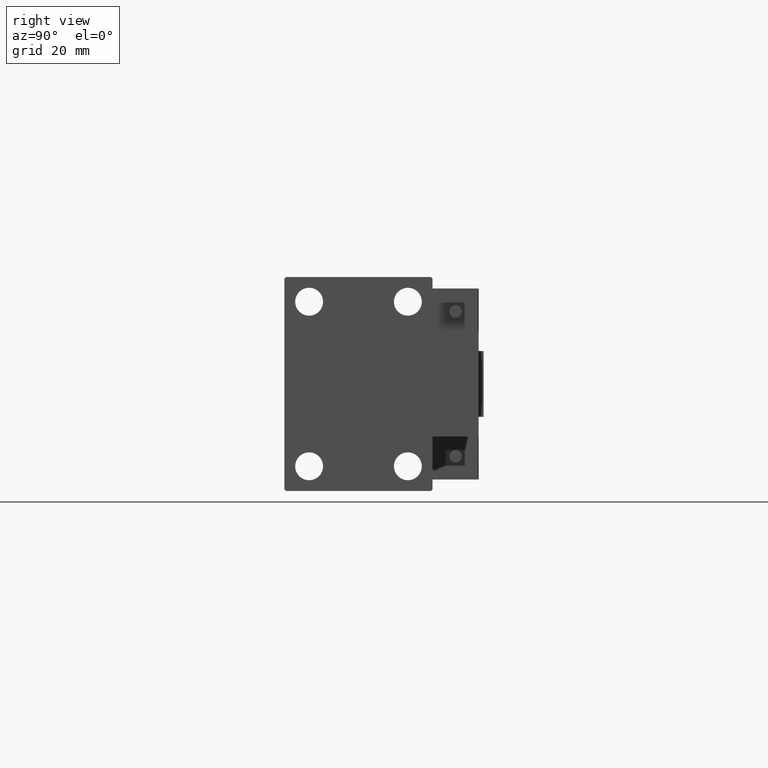
[diagram: clean part render]
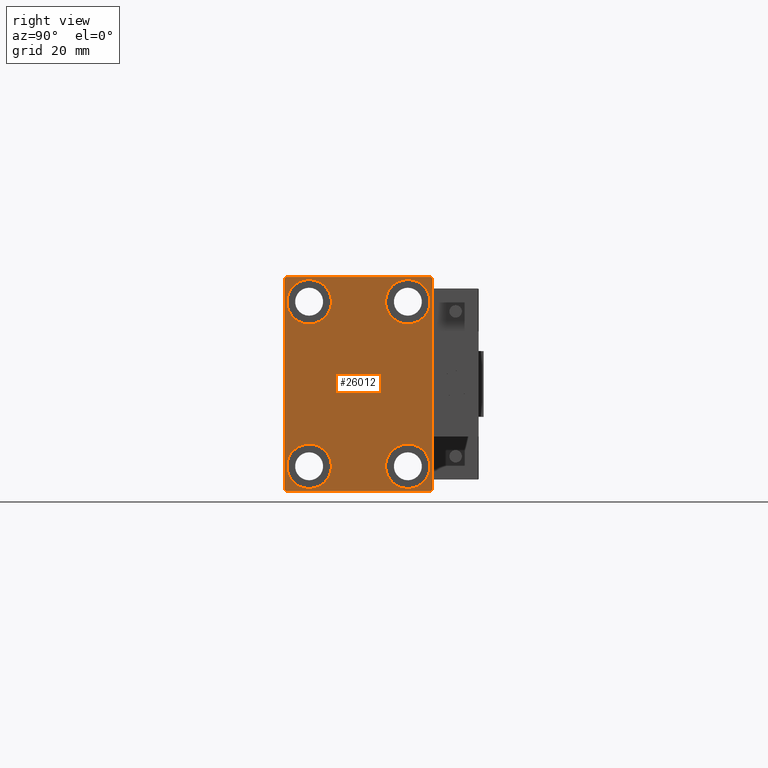
[diagram: same view with one face highlighted and labeled with its STEP entity id]
A machine part, right view. The second image highlights one B-rep face of the part: STEP entity #26012.
In plain terms, the highlighted planar face has unit normal (1, 0, 0).
Its self-contained STEP definition (entity closure, byte-faithful):
#329 = DIRECTION ( 'NONE',  ( 1.000000000000000000, 0.000000000000000000, 0.000000000000000000 ) ) ;
#360 = VERTEX_POINT ( 'NONE', #28802 ) ;
#598 = CIRCLE ( 'NONE', #7110, 6.749999999999999112 ) ;
#1582 = ORIENTED_EDGE ( 'NONE', *, *, #3130, .T. ) ;
#2376 = EDGE_CURVE ( 'NONE', #8822, #30088, #9449, .T. ) ;
#2687 = EDGE_CURVE ( 'NONE', #22417, #29400, #13706, .T. ) ;
#2753 = ORIENTED_EDGE ( 'NONE', *, *, #46295, .T. ) ;
#3130 = EDGE_CURVE ( 'NONE', #29400, #28059, #41360, .T. ) ;
#4028 = EDGE_LOOP ( 'NONE', ( #40129, #45838, #28886, #1582, #39316, #50199, #20679, #45593 ) ) ;
#4234 = LINE ( 'NONE', #24595, #7914 ) ;
#4742 = CARTESIAN_POINT ( 'NONE',  ( 130.0000000000000000, 14.99999999999999645, -31.75000000000000000 ) ) ;
#4786 = CARTESIAN_POINT ( 'NONE',  ( 130.0000000000000000, -14.99999999999999645, 25.00000000000000000 ) ) ;
#5199 = VERTEX_POINT ( 'NONE', #29589 ) ;
#5577 = ORIENTED_EDGE ( 'NONE', *, *, #33733, .T. ) ;
#5882 = DIRECTION ( 'NONE',  ( 0.000000000000000000, -0.7071067811865474617, -0.7071067811865474617 ) ) ;
#6208 = CIRCLE ( 'NONE', #34640, 6.749999999999999112 ) ;
#6561 = CARTESIAN_POINT ( 'NONE',  ( 130.0000000000000000, -22.00000000000003197, -32.50000000000000711 ) ) ;
#6781 = DIRECTION ( 'NONE',  ( 0.000000000000000000, 1.000000000000000000, 0.000000000000000000 ) ) ;
#6820 = EDGE_CURVE ( 'NONE', #16386, #23107, #44342, .T. ) ;
#7110 = AXIS2_PLACEMENT_3D ( 'NONE', #23820, #34753, #39328 ) ;
#7729 = CARTESIAN_POINT ( 'NONE',  ( 130.0000000000000000, 0.000000000000000000, 0.000000000000000000 ) ) ;
#7788 = DIRECTION ( 'NONE',  ( -1.000000000000000000, -0.000000000000000000, -0.000000000000000000 ) ) ;
#7914 = VECTOR ( 'NONE', #12893, 1000.000000000000114 ) ;
#8034 = DIRECTION ( 'NONE',  ( -1.000000000000000000, -0.000000000000000000, -0.000000000000000000 ) ) ;
#8230 = ORIENTED_EDGE ( 'NONE', *, *, #33739, .T. ) ;
#8243 = DIRECTION ( 'NONE',  ( 0.000000000000000000, 0.000000000000000000, -1.000000000000000000 ) ) ;
#8442 = VERTEX_POINT ( 'NONE', #42618 ) ;
#8822 = VERTEX_POINT ( 'NONE', #24671 ) ;
#9080 = ORIENTED_EDGE ( 'NONE', *, *, #12290, .T. ) ;
#9136 = EDGE_CURVE ( 'NONE', #23107, #16386, #43111, .T. ) ;
#9449 = LINE ( 'NONE', #36899, #50124 ) ;
#9571 = CIRCLE ( 'NONE', #18473, 6.749999999999999112 ) ;
#9798 = VERTEX_POINT ( 'NONE', #38595 ) ;
#9902 = CARTESIAN_POINT ( 'NONE',  ( 130.0000000000000000, -22.50000000000000711, 32.49999999999999289 ) ) ;
#10363 = LINE ( 'NONE', #38057, #22147 ) ;
#11327 = CIRCLE ( 'NONE', #17033, 6.749999999999999112 ) ;
#11894 = EDGE_CURVE ( 'NONE', #30088, #41370, #32950, .T. ) ;
#12121 = DIRECTION ( 'NONE',  ( 0.000000000000000000, 0.000000000000000000, 1.000000000000000000 ) ) ;
#12156 = CARTESIAN_POINT ( 'NONE',  ( 130.0000000000000000, -15.00000000000000355, -25.00000000000000000 ) ) ;
#12290 = EDGE_CURVE ( 'NONE', #29885, #8442, #42783, .T. ) ;
#12893 = DIRECTION ( 'NONE',  ( -0.000000000000000000, 0.7071067811865474617, 0.7071067811865474617 ) ) ;
#13609 = EDGE_CURVE ( 'NONE', #41370, #22417, #40471, .T. ) ;
#13706 = LINE ( 'NONE', #9902, #15571 ) ;
#13846 = EDGE_CURVE ( 'NONE', #360, #24870, #4234, .T. ) ;
#14910 = CARTESIAN_POINT ( 'NONE',  ( 130.0000000000000000, -21.99999999999999289, 32.49999999999999289 ) ) ;
#15571 = VECTOR ( 'NONE', #40414, 1000.000000000000000 ) ;
#15601 = EDGE_CURVE ( 'NONE', #48264, #24615, #6208, .T. ) ;
#15615 = FACE_BOUND ( 'NONE', #22099, .T. ) ;
#16386 = VERTEX_POINT ( 'NONE', #37639 ) ;
#16749 = DIRECTION ( 'NONE',  ( -1.000000000000000000, -0.000000000000000000, -0.000000000000000000 ) ) ;
#17033 = AXIS2_PLACEMENT_3D ( 'NONE', #12156, #20288, #24108 ) ;
#17667 = DIRECTION ( 'NONE',  ( -1.000000000000000000, -0.000000000000000000, -0.000000000000000000 ) ) ;
#17973 = ORIENTED_EDGE ( 'NONE', *, *, #6820, .T. ) ;
#18473 = AXIS2_PLACEMENT_3D ( 'NONE', #23563, #7788, #12121 ) ;
#18669 = DIRECTION ( 'NONE',  ( -1.000000000000000000, -0.000000000000000000, -0.000000000000000000 ) ) ;
#19067 = CARTESIAN_POINT ( 'NONE',  ( 130.0000000000000000, -22.50000000000000711, 31.99999999999999289 ) ) ;
#19590 = AXIS2_PLACEMENT_3D ( 'NONE', #34680, #18669, #27039 ) ;
#19686 = FACE_BOUND ( 'NONE', #45780, .T. ) ;
#20288 = DIRECTION ( 'NONE',  ( -1.000000000000000000, -0.000000000000000000, -0.000000000000000000 ) ) ;
#20439 = DIRECTION ( 'NONE',  ( 0.000000000000000000, 0.000000000000000000, 1.000000000000000000 ) ) ;
#20679 = ORIENTED_EDGE ( 'NONE', *, *, #26343, .T. ) ;
#20856 = AXIS2_PLACEMENT_3D ( 'NONE', #21379, #22126, #20439 ) ;
#21038 = EDGE_LOOP ( 'NONE', ( #30462, #17973 ) ) ;
#21178 = AXIS2_PLACEMENT_3D ( 'NONE', #28852, #17667, #33177 ) ;
#21379 = CARTESIAN_POINT ( 'NONE',  ( 130.0000000000000000, 14.99999999999999645, -25.00000000000000000 ) ) ;
#21712 = CARTESIAN_POINT ( 'NONE',  ( 130.0000000000000000, 22.50000000000000000, -32.00000000000002132 ) ) ;
#22042 = CIRCLE ( 'NONE', #19590, 6.749999999999999112 ) ;
#22099 = EDGE_LOOP ( 'NONE', ( #26591, #2753 ) ) ;
#22126 = DIRECTION ( 'NONE',  ( -1.000000000000000000, -0.000000000000000000, -0.000000000000000000 ) ) ;
#22147 = VECTOR ( 'NONE', #6781, 1000.000000000000000 ) ;
#22417 = VERTEX_POINT ( 'NONE', #19067 ) ;
#22898 = CARTESIAN_POINT ( 'NONE',  ( 130.0000000000000000, -22.50000000000000711, -32.00000000000002132 ) ) ;
#23107 = VERTEX_POINT ( 'NONE', #23942 ) ;
#23551 = DIRECTION ( 'NONE',  ( 0.000000000000000000, 0.000000000000000000, 1.000000000000000000 ) ) ;
#23563 = CARTESIAN_POINT ( 'NONE',  ( 130.0000000000000000, -15.00000000000000355, -25.00000000000000000 ) ) ;
#23691 = LINE ( 'NONE', #42767, #38966 ) ;
#23820 = CARTESIAN_POINT ( 'NONE',  ( 130.0000000000000000, 14.99999999999999645, -25.00000000000000000 ) ) ;
#23942 = CARTESIAN_POINT ( 'NONE',  ( 130.0000000000000000, 15.00000000000000355, 18.25000000000000355 ) ) ;
#24108 = DIRECTION ( 'NONE',  ( 0.000000000000000000, 0.000000000000000000, 1.000000000000000000 ) ) ;
#24595 = CARTESIAN_POINT ( 'NONE',  ( 130.0000000000000000, 27.25000000000000711, -27.25000000000000711 ) ) ;
#24615 = VERTEX_POINT ( 'NONE', #43920 ) ;
#24671 = CARTESIAN_POINT ( 'NONE',  ( 130.0000000000000000, 22.49999999999999289, 32.00000000000004974 ) ) ;
#24870 = VERTEX_POINT ( 'NONE', #21712 ) ;
#26012 = ADVANCED_FACE ( 'NONE', ( #19686, #15615, #35194, #47169, #27053 ), #31619, .T. ) ;
#26343 = EDGE_CURVE ( 'NONE', #24870, #8822, #23691, .T. ) ;
#26591 = ORIENTED_EDGE ( 'NONE', *, *, #15601, .T. ) ;
#27039 = DIRECTION ( 'NONE',  ( 0.000000000000000000, 0.000000000000000000, 1.000000000000000000 ) ) ;
#27053 = FACE_OUTER_BOUND ( 'NONE', #4028, .T. ) ;
#28059 = VERTEX_POINT ( 'NONE', #6561 ) ;
#28513 = CARTESIAN_POINT ( 'NONE',  ( 130.0000000000000000, -27.25000000000000000, 27.25000000000000000 ) ) ;
#28668 = EDGE_LOOP ( 'NONE', ( #5577, #37487 ) ) ;
#28802 = CARTESIAN_POINT ( 'NONE',  ( 130.0000000000000000, 22.00000000000000000, -32.50000000000000711 ) ) ;
#28852 = CARTESIAN_POINT ( 'NONE',  ( 130.0000000000000000, 15.00000000000000355, 25.00000000000000000 ) ) ;
#28886 = ORIENTED_EDGE ( 'NONE', *, *, #2687, .T. ) ;
#29400 = VERTEX_POINT ( 'NONE', #22898 ) ;
#29589 = CARTESIAN_POINT ( 'NONE',  ( 130.0000000000000000, -15.00000000000000355, -31.75000000000000000 ) ) ;
#29885 = VERTEX_POINT ( 'NONE', #4742 ) ;
#30088 = VERTEX_POINT ( 'NONE', #49997 ) ;
#30386 = CARTESIAN_POINT ( 'NONE',  ( 130.0000000000000000, -14.99999999999999645, 18.25000000000000355 ) ) ;
#30462 = ORIENTED_EDGE ( 'NONE', *, *, #9136, .T. ) ;
#31055 = DIRECTION ( 'NONE',  ( 0.000000000000000000, -1.067522139062650425E-16, 1.000000000000000000 ) ) ;
#31619 = PLANE ( 'NONE',  #31670 ) ;
#31670 = AXIS2_PLACEMENT_3D ( 'NONE', #7729, #329, #8243 ) ;
#32950 = LINE ( 'NONE', #48485, #38698 ) ;
#33177 = DIRECTION ( 'NONE',  ( 0.000000000000000000, 0.000000000000000000, 1.000000000000000000 ) ) ;
#33476 = CARTESIAN_POINT ( 'NONE',  ( 130.0000000000000000, -27.25000000000033040, -27.24999999999957367 ) ) ;
#33733 = EDGE_CURVE ( 'NONE', #5199, #9798, #9571, .T. ) ;
#33739 = EDGE_CURVE ( 'NONE', #8442, #29885, #598, .T. ) ;
#33749 = AXIS2_PLACEMENT_3D ( 'NONE', #42886, #8034, #23551 ) ;
#34640 = AXIS2_PLACEMENT_3D ( 'NONE', #4786, #16749, #35826 ) ;
#34680 = CARTESIAN_POINT ( 'NONE',  ( 130.0000000000000000, -14.99999999999999645, 25.00000000000000000 ) ) ;
#34753 = DIRECTION ( 'NONE',  ( -1.000000000000000000, -0.000000000000000000, -0.000000000000000000 ) ) ;
#35194 = FACE_BOUND ( 'NONE', #21038, .T. ) ;
#35826 = DIRECTION ( 'NONE',  ( 0.000000000000000000, 0.000000000000000000, 1.000000000000000000 ) ) ;
#36766 = DIRECTION ( 'NONE',  ( 0.000000000000000000, -1.000000000000000000, -1.541976423090495387E-16 ) ) ;
#36899 = CARTESIAN_POINT ( 'NONE',  ( 130.0000000000000000, 27.24999999999955236, 27.25000000000068567 ) ) ;
#37487 = ORIENTED_EDGE ( 'NONE', *, *, #37983, .T. ) ;
#37639 = CARTESIAN_POINT ( 'NONE',  ( 130.0000000000000000, 15.00000000000000355, 31.75000000000000000 ) ) ;
#37983 = EDGE_CURVE ( 'NONE', #9798, #5199, #11327, .T. ) ;
#38027 = DIRECTION ( 'NONE',  ( -0.000000000000000000, 0.7071067811865376918, -0.7071067811865573427 ) ) ;
#38057 = CARTESIAN_POINT ( 'NONE',  ( 130.0000000000000000, -22.50000000000000711, -32.50000000000000711 ) ) ;
#38595 = CARTESIAN_POINT ( 'NONE',  ( 130.0000000000000000, -15.00000000000000355, -18.25000000000000355 ) ) ;
#38698 = VECTOR ( 'NONE', #36766, 1000.000000000000000 ) ;
#38966 = VECTOR ( 'NONE', #31055, 1000.000000000000000 ) ;
#39316 = ORIENTED_EDGE ( 'NONE', *, *, #48819, .T. ) ;
#39328 = DIRECTION ( 'NONE',  ( 0.000000000000000000, 0.000000000000000000, 1.000000000000000000 ) ) ;
#40129 = ORIENTED_EDGE ( 'NONE', *, *, #11894, .T. ) ;
#40414 = DIRECTION ( 'NONE',  ( 0.000000000000000000, 0.000000000000000000, -1.000000000000000000 ) ) ;
#40471 = LINE ( 'NONE', #28513, #46938 ) ;
#41360 = LINE ( 'NONE', #33476, #45030 ) ;
#41370 = VERTEX_POINT ( 'NONE', #14910 ) ;
#42618 = CARTESIAN_POINT ( 'NONE',  ( 130.0000000000000000, 14.99999999999999645, -18.25000000000000355 ) ) ;
#42767 = CARTESIAN_POINT ( 'NONE',  ( 130.0000000000000000, 22.50000000000000000, -32.50000000000000711 ) ) ;
#42783 = CIRCLE ( 'NONE', #20856, 6.749999999999999112 ) ;
#42886 = CARTESIAN_POINT ( 'NONE',  ( 130.0000000000000000, 15.00000000000000355, 25.00000000000000000 ) ) ;
#43111 = CIRCLE ( 'NONE', #21178, 6.749999999999999112 ) ;
#43920 = CARTESIAN_POINT ( 'NONE',  ( 130.0000000000000000, -14.99999999999999645, 31.75000000000000000 ) ) ;
#44342 = CIRCLE ( 'NONE', #33749, 6.749999999999999112 ) ;
#45030 = VECTOR ( 'NONE', #38027, 1000.000000000000114 ) ;
#45593 = ORIENTED_EDGE ( 'NONE', *, *, #2376, .T. ) ;
#45780 = EDGE_LOOP ( 'NONE', ( #9080, #8230 ) ) ;
#45838 = ORIENTED_EDGE ( 'NONE', *, *, #13609, .T. ) ;
#46295 = EDGE_CURVE ( 'NONE', #24615, #48264, #22042, .T. ) ;
#46938 = VECTOR ( 'NONE', #5882, 1000.000000000000114 ) ;
#47169 = FACE_BOUND ( 'NONE', #28668, .T. ) ;
#48264 = VERTEX_POINT ( 'NONE', #30386 ) ;
#48485 = CARTESIAN_POINT ( 'NONE',  ( 130.0000000000000000, 22.49999999999999289, 32.50000000000000000 ) ) ;
#48819 = EDGE_CURVE ( 'NONE', #28059, #360, #10363, .T. ) ;
#48871 = DIRECTION ( 'NONE',  ( -0.000000000000000000, -0.7071067811865622277, 0.7071067811865328068 ) ) ;
#49997 = CARTESIAN_POINT ( 'NONE',  ( 130.0000000000000000, 22.00000000000002132, 32.50000000000000000 ) ) ;
#50124 = VECTOR ( 'NONE', #48871, 1000.000000000000000 ) ;
#50199 = ORIENTED_EDGE ( 'NONE', *, *, #13846, .T. ) ;